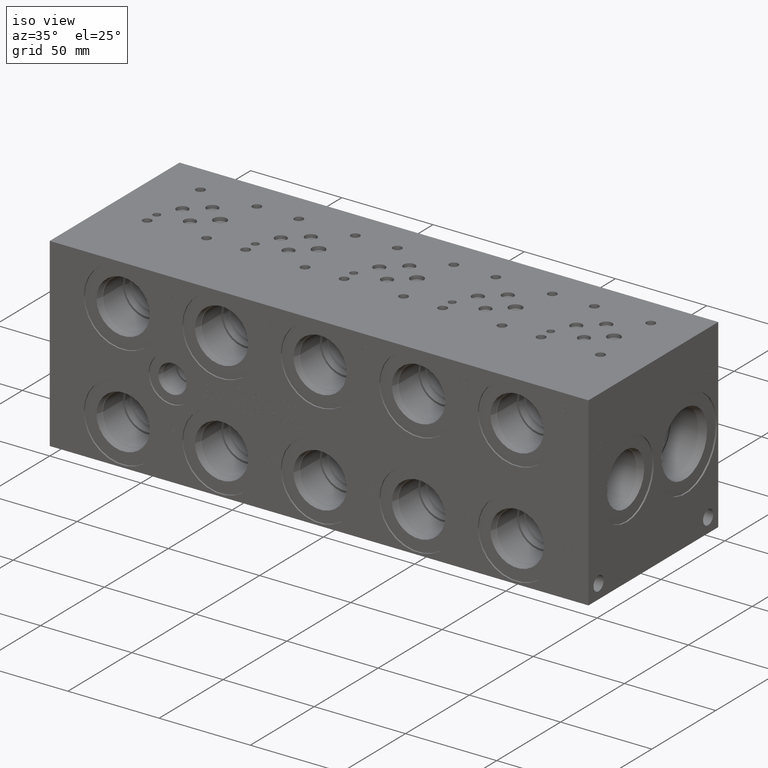
[diagram: clean part render]
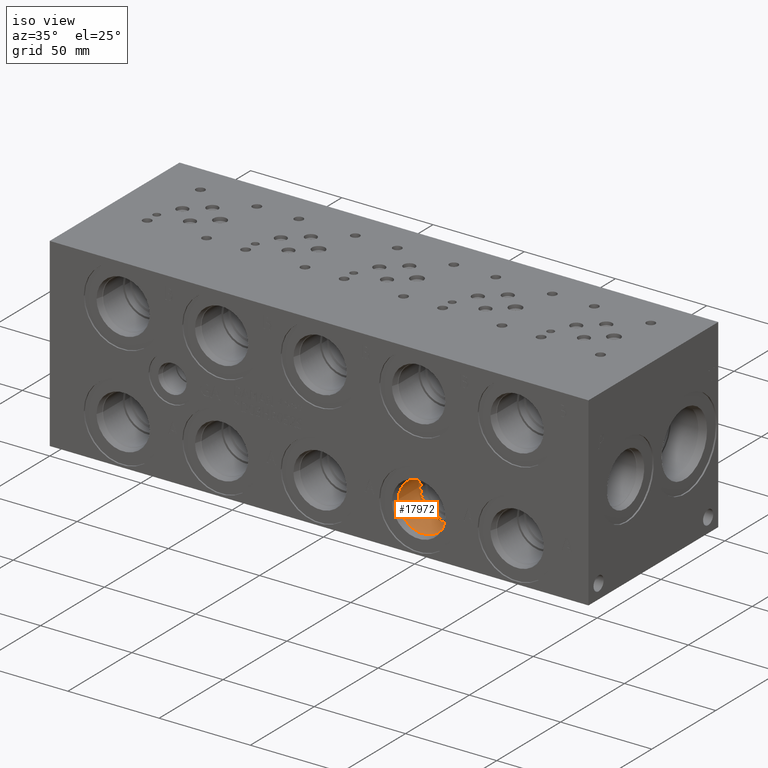
[diagram: same view with one face highlighted and labeled with its STEP entity id]
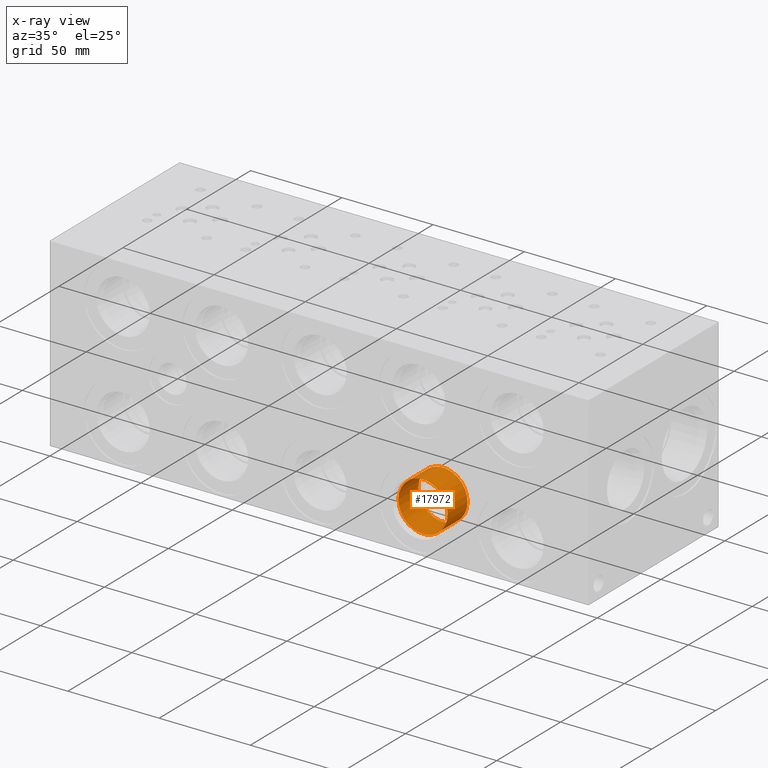
[diagram: x-ray of the same camera — body ghosted, the highlighted face saturated]
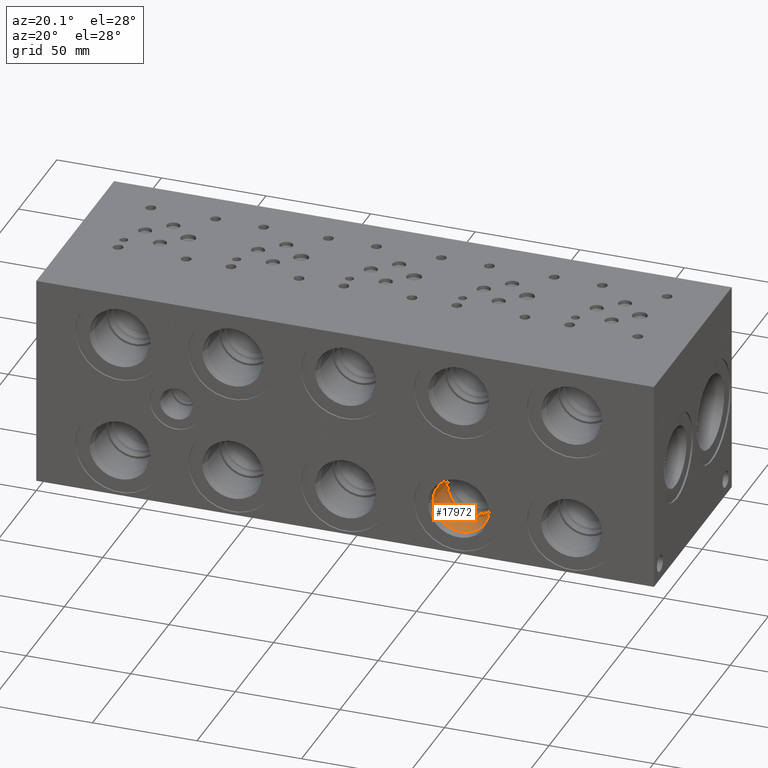
[diagram: same view with one face highlighted and labeled with its STEP entity id]
A machine part, iso view. The second image highlights one B-rep face of the part: STEP entity #17972.
The next image is the same camera in x-ray: the body ghosted, the highlighted face saturated — about 0% of this face is hidden behind the body in this view.
A second angle (auxiliary view) of the same face is appended — the face is thin or edge-on in the first view.
In plain terms, the highlighted cylindrical surface (bore or boss wall) has radius 13.5001 mm, axis along (0, -1, 0).
Its self-contained STEP definition (entity closure, byte-faithful):
#233=CYLINDRICAL_SURFACE('',#19136,13.5001);
#795=CIRCLE('',#18957,13.5001);
#901=CIRCLE('',#19133,13.5001);
#902=CIRCLE('',#19134,13.5001);
#2485=FACE_OUTER_BOUND('',#3542,.T.);
#3542=EDGE_LOOP('',(#15432,#15433,#15434,#15435,#15436));
#5161=LINE('',#30933,#6691);
#6691=VECTOR('',#22924,13.5001);
#8247=VERTEX_POINT('',#30576);
#8361=VERTEX_POINT('',#30926);
#8362=VERTEX_POINT('',#30927);
#10633=EDGE_CURVE('',#8247,#8247,#795,.T.);
#10798=EDGE_CURVE('',#8361,#8362,#901,.T.);
#10799=EDGE_CURVE('',#8362,#8361,#902,.T.);
#10801=EDGE_CURVE('',#8247,#8362,#5161,.T.);
#15432=ORIENTED_EDGE('',*,*,#10633,.T.);
#15433=ORIENTED_EDGE('',*,*,#10801,.T.);
#15434=ORIENTED_EDGE('',*,*,#10798,.F.);
#15435=ORIENTED_EDGE('',*,*,#10799,.F.);
#15436=ORIENTED_EDGE('',*,*,#10801,.F.);
#17972=ADVANCED_FACE('',(#2485),#233,.F.);
#18957=AXIS2_PLACEMENT_3D('',#30578,#22505,#22506);
#19133=AXIS2_PLACEMENT_3D('',#30928,#22916,#22917);
#19134=AXIS2_PLACEMENT_3D('',#30929,#22918,#22919);
#19136=AXIS2_PLACEMENT_3D('',#30932,#22922,#22923);
#22505=DIRECTION('center_axis',(0.,-1.,0.));
#22506=DIRECTION('ref_axis',(1.,0.,0.));
#22916=DIRECTION('center_axis',(0.,-1.,0.));
#22917=DIRECTION('ref_axis',(1.,0.,0.));
#22918=DIRECTION('center_axis',(0.,-1.,0.));
#22919=DIRECTION('ref_axis',(1.,0.,0.));
#22922=DIRECTION('center_axis',(0.,-1.,0.));
#22923=DIRECTION('ref_axis',(1.,0.,0.));
#22924=DIRECTION('',(0.,1.,0.));
#30576=CARTESIAN_POINT('',(188.0997,4.27990000000001,22.225));
#30578=CARTESIAN_POINT('Origin',(201.5998,4.27990000000001,22.225));
#30926=CARTESIAN_POINT('',(215.0999,19.8374,22.225));
#30927=CARTESIAN_POINT('',(188.0997,19.8374,22.225));
#30928=CARTESIAN_POINT('Origin',(201.5998,19.8374,22.225));
#30929=CARTESIAN_POINT('Origin',(201.5998,19.8374,22.225));
#30932=CARTESIAN_POINT('Origin',(201.5998,9.9187,22.225));
#30933=CARTESIAN_POINT('',(188.0997,9.9187,22.225));